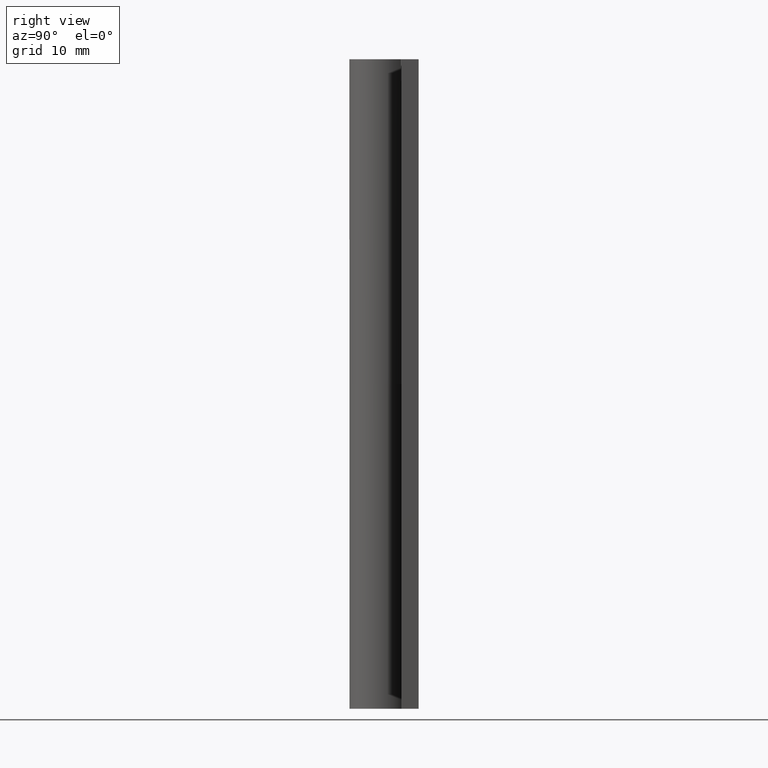
[diagram: clean part render]
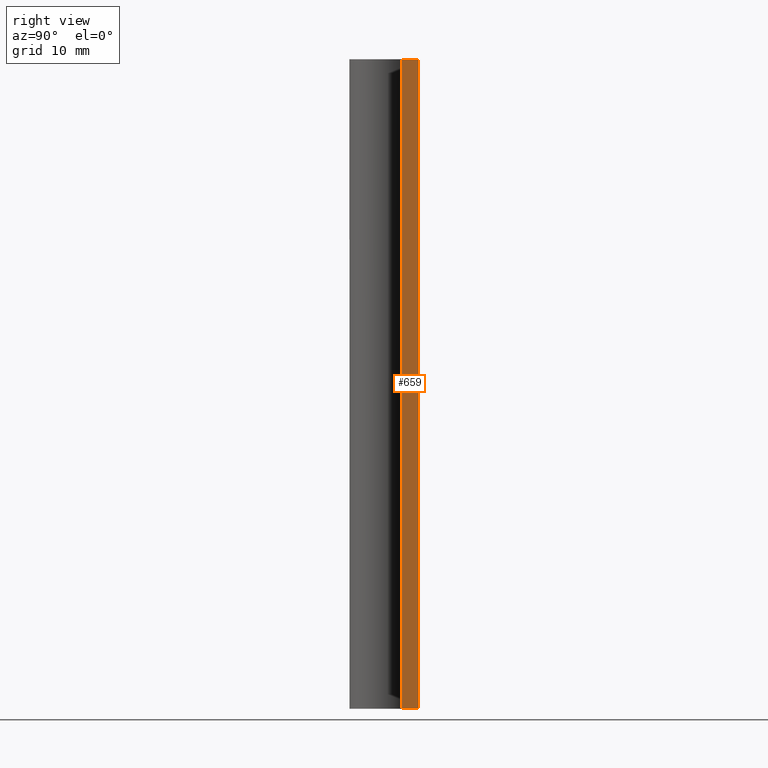
[diagram: same view with one face highlighted and labeled with its STEP entity id]
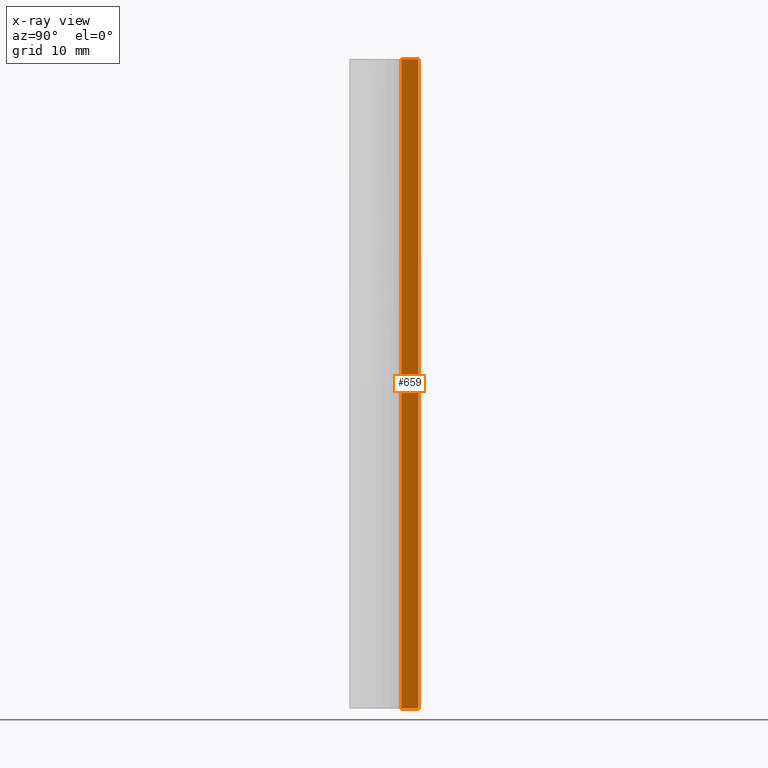
[diagram: x-ray of the same camera — body ghosted, the highlighted face saturated]
A machine part, right view. The second image highlights one B-rep face of the part: STEP entity #659.
The next image is the same camera in x-ray: the body ghosted, the highlighted face saturated — about 0% of this face is hidden behind the body in this view.
In plain terms, the highlighted face is a freeform B-spline surface patch.
Its self-contained STEP definition (entity closure, byte-faithful):
#425=CARTESIAN_POINT('',(19.000007999999902,2.0,75.0));
#426=VERTEX_POINT('',#425);
#427=CARTESIAN_POINT('',(19.000007999999902,4.0,75.0));
#428=VERTEX_POINT('',#427);
#429=CARTESIAN_POINT('',(19.000007999999902,2.0,75.0));
#430=CARTESIAN_POINT('',(19.000007999999902,4.0,75.0));
#431=QUASI_UNIFORM_CURVE('',1,(#429,#430),.UNSPECIFIED.,.F.,.U.);
#432=EDGE_CURVE('',#426,#428,#431,.T.);
#504=CARTESIAN_POINT('',(19.000007999999902,4.0,0.0));
#505=VERTEX_POINT('',#504);
#511=CARTESIAN_POINT('',(19.000007999999902,2.0,0.0));
#512=VERTEX_POINT('',#511);
#513=CARTESIAN_POINT('',(19.000007999999902,2.0,0.0));
#514=CARTESIAN_POINT('',(19.000007999999902,4.0,0.0));
#515=QUASI_UNIFORM_CURVE('',1,(#513,#514),.UNSPECIFIED.,.F.,.U.);
#516=EDGE_CURVE('',#512,#505,#515,.T.);
#534=CARTESIAN_POINT('',(19.000007999999902,2.0,0.0));
#535=CARTESIAN_POINT('',(19.000007999999902,2.0,75.0));
#536=QUASI_UNIFORM_CURVE('',1,(#534,#535),.UNSPECIFIED.,.F.,.U.);
#537=EDGE_CURVE('',#512,#426,#536,.T.);
#638=CARTESIAN_POINT('',(19.000007999999902,4.0,0.0));
#639=CARTESIAN_POINT('',(19.000007999999902,4.0,75.0));
#640=QUASI_UNIFORM_CURVE('',1,(#638,#639),.UNSPECIFIED.,.F.,.U.);
#641=EDGE_CURVE('',#505,#428,#640,.T.);
#648=CARTESIAN_POINT('',(19.000007999999902,1.900100003876388,78.746249854635451));
#649=CARTESIAN_POINT('',(19.000007999999902,1.900100003876388,-3.746251866292208));
#650=CARTESIAN_POINT('',(19.000007999999902,4.099900049767792,78.746249854635451));
#651=CARTESIAN_POINT('',(19.000007999999902,4.099900049767792,-3.746251866292208));
#652=B_SPLINE_SURFACE_WITH_KNOTS('',1,1,((#648,#650),(#649,#651)),.UNSPECIFIED.,.F.,.F.,.U.,(2,2),(2,2),(0.0,82.492501720927663),(0.0,2.199800045891404),.UNSPECIFIED.);
#653=ORIENTED_EDGE('',*,*,#432,.F.);
#654=ORIENTED_EDGE('',*,*,#537,.F.);
#655=ORIENTED_EDGE('',*,*,#516,.T.);
#656=ORIENTED_EDGE('',*,*,#641,.T.);
#657=EDGE_LOOP('',(#653,#654,#655,#656));
#658=FACE_OUTER_BOUND('',#657,.T.);
#659=ADVANCED_FACE('',(#658),#652,.T.);